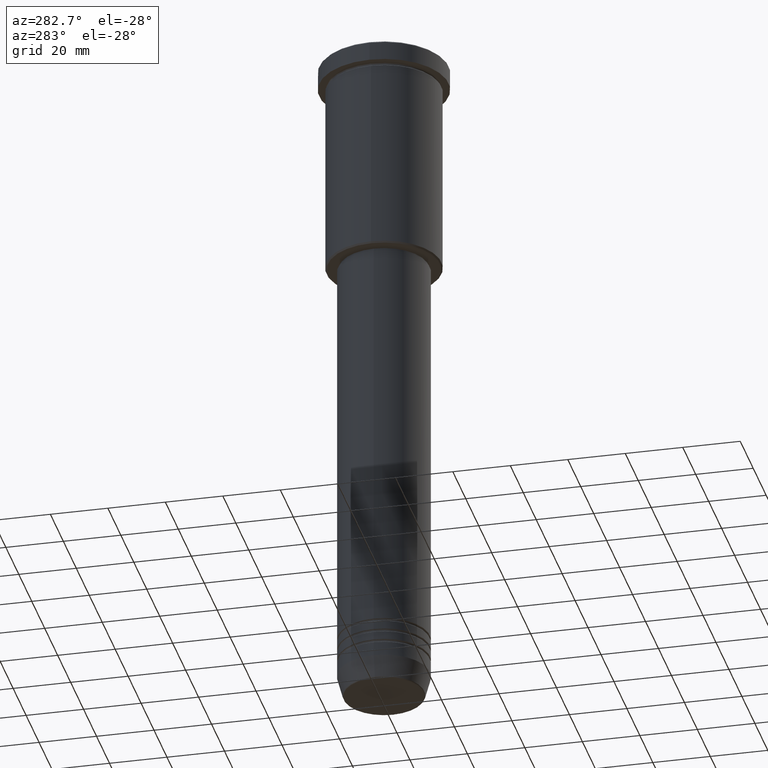
[diagram: clean part render]
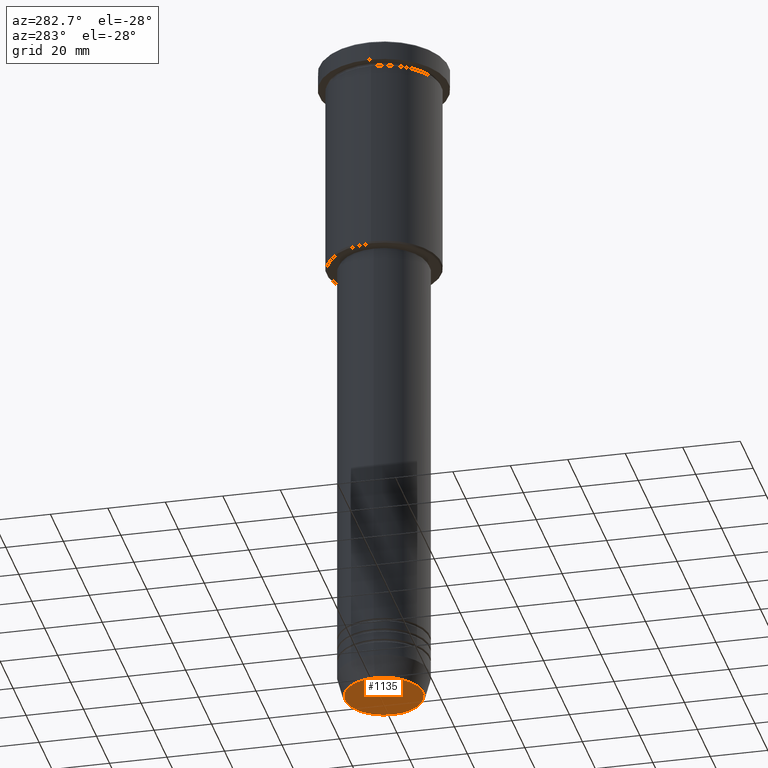
[diagram: same view with one face highlighted and labeled with its STEP entity id]
A machine part, auxiliary view. The second image highlights one B-rep face of the part: STEP entity #1135.
In plain terms, the highlighted planar face has unit normal (0, -0, 1).
Its self-contained STEP definition (entity closure, byte-faithful):
#15 = ORIENTED_EDGE ( 'NONE', *, *, #844, .T. ) ;
#66 = EDGE_LOOP ( 'NONE', ( #15, #668 ) ) ;
#107 = FACE_OUTER_BOUND ( 'NONE', #66, .T. ) ;
#157 = DIRECTION ( 'NONE',  ( 1.000000000000000000, 0.000000000000000000, 0.000000000000000000 ) ) ;
#188 = CARTESIAN_POINT ( 'NONE',  ( -13.60671756277710109, 1.695915260300172047E-15, -240.0000000000000000 ) ) ;
#190 = DIRECTION ( 'NONE',  ( 1.000000000000000000, 0.000000000000000000, 0.000000000000000000 ) ) ;
#223 = AXIS2_PLACEMENT_3D ( 'NONE', #584, #852, #190 ) ;
#278 = EDGE_CURVE ( 'NONE', #840, #743, #431, .T. ) ;
#348 = CARTESIAN_POINT ( 'NONE',  ( 0.000000000000000000, 0.000000000000000000, -240.0000000000000000 ) ) ;
#368 = PLANE ( 'NONE',  #223 ) ;
#431 = CIRCLE ( 'NONE', #693, 13.60671756277710109 ) ;
#465 = CARTESIAN_POINT ( 'NONE',  ( 0.000000000000000000, 0.000000000000000000, -240.0000000000000000 ) ) ;
#584 = CARTESIAN_POINT ( 'NONE',  ( 0.000000000000000000, 0.000000000000000000, -240.0000000000000000 ) ) ;
#610 = CIRCLE ( 'NONE', #776, 13.60671756277710109 ) ;
#637 = DIRECTION ( 'NONE',  ( 0.000000000000000000, 0.000000000000000000, -1.000000000000000000 ) ) ;
#668 = ORIENTED_EDGE ( 'NONE', *, *, #278, .T. ) ;
#688 = CARTESIAN_POINT ( 'NONE',  ( 13.60671756277710109, 0.000000000000000000, -240.0000000000000000 ) ) ;
#693 = AXIS2_PLACEMENT_3D ( 'NONE', #465, #1106, #760 ) ;
#743 = VERTEX_POINT ( 'NONE', #688 ) ;
#760 = DIRECTION ( 'NONE',  ( 1.000000000000000000, 0.000000000000000000, 0.000000000000000000 ) ) ;
#776 = AXIS2_PLACEMENT_3D ( 'NONE', #348, #637, #157 ) ;
#840 = VERTEX_POINT ( 'NONE', #188 ) ;
#844 = EDGE_CURVE ( 'NONE', #743, #840, #610, .T. ) ;
#852 = DIRECTION ( 'NONE',  ( 0.000000000000000000, -0.000000000000000000, 1.000000000000000000 ) ) ;
#1106 = DIRECTION ( 'NONE',  ( 0.000000000000000000, 0.000000000000000000, -1.000000000000000000 ) ) ;
#1135 = ADVANCED_FACE ( 'NONE', ( #107 ), #368, .F. ) ;